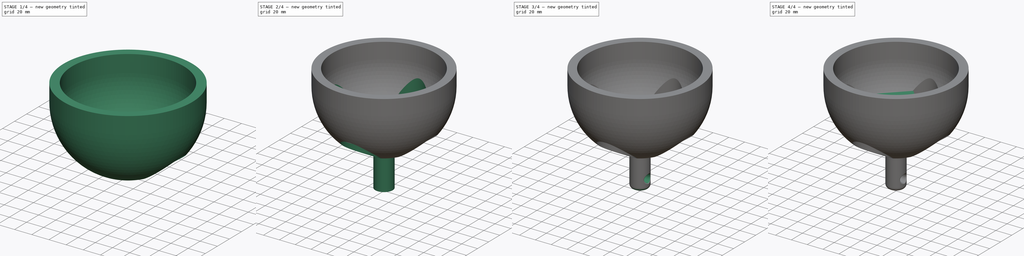
[diagram: build sequence overview — one tinted view per stage of 4, left to right]
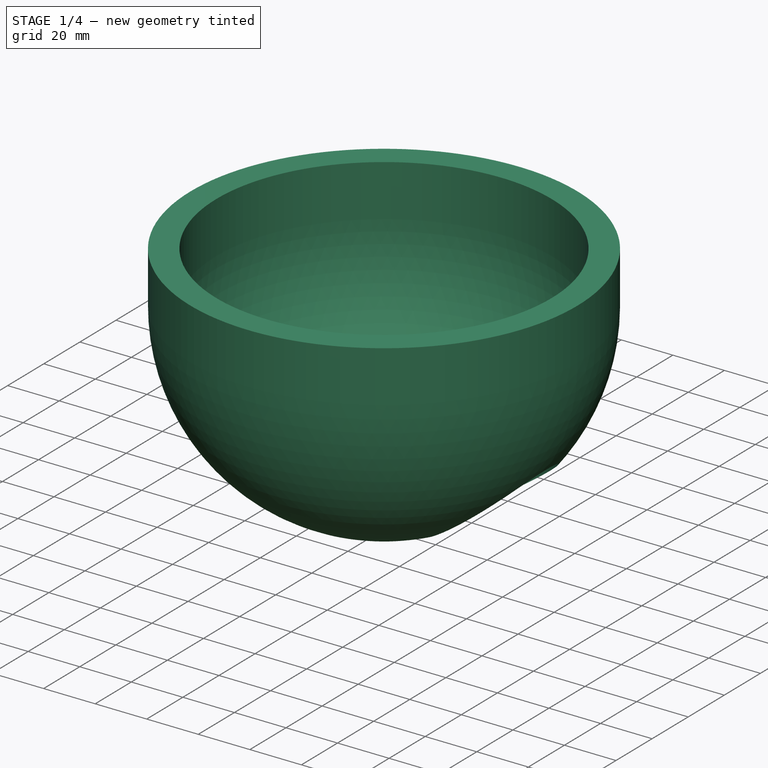
[diagram: stage 1 of 4 — iso view after this stage's code; geometry added in this stage tinted green]
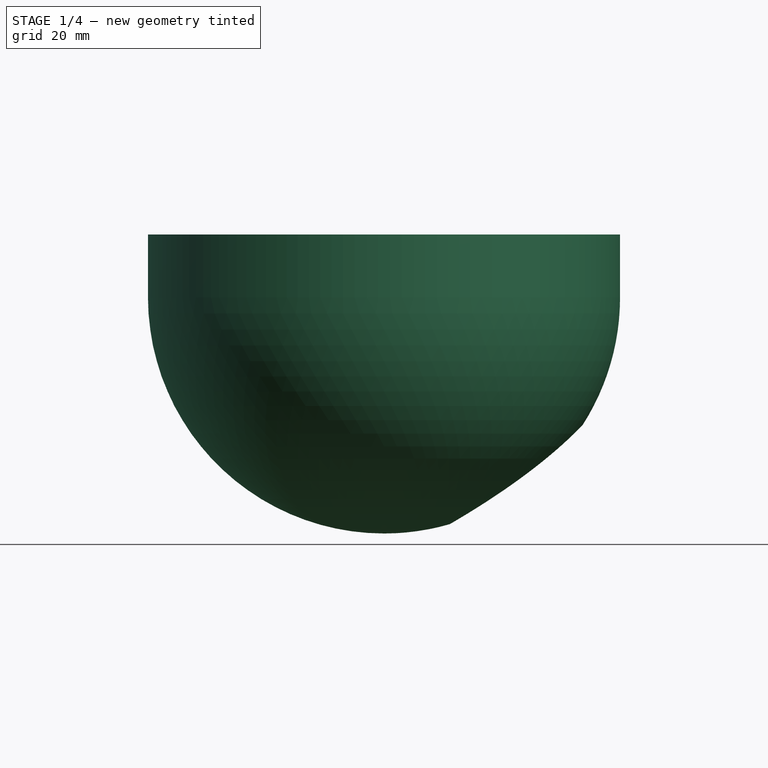
[diagram: stage 1 of 4 — front view after this stage's code; geometry added in this stage tinted green]
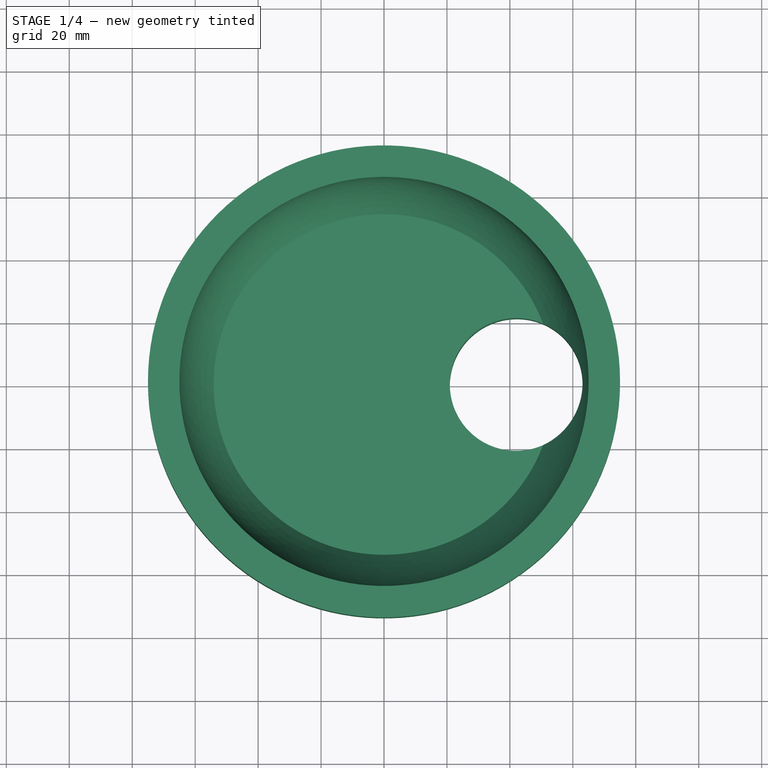
[diagram: stage 1 of 4 — top view after this stage's code; geometry added in this stage tinted green]
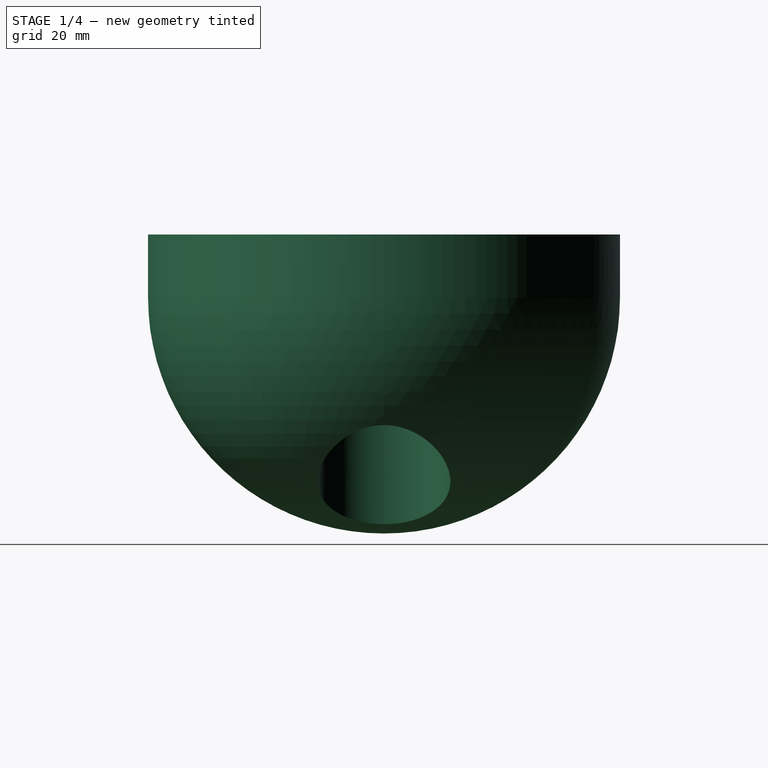
[diagram: stage 1 of 4 — right view after this stage's code; geometry added in this stage tinted green]
FCSTD DOCUMENT  (FreeCAD 0.19R24291 (Git))
Label: Buoy3DBase
License: All rights reserved
LicenseURL: http://en.wikipedia.org/wiki/All_rights_reserved
objects: Sketcher::SketchObject×6, PartDesign::Pad×3, PartDesign::Fillet×3, PartDesign::Pocket×2, PartDesign::Revolution×1, PartDesign::PolarPattern×1, PartDesign::Body×1, TechDraw::DrawSVGTemplate×1, TechDraw::DrawViewPart×1, TechDraw::DrawPage×1
note: 26 computed .brp shape members not serialized (recipe doc carries the construction recipe); baked Part::Feature solids carry a one-line shape summary decoded from their .brp

FEATURE [Sketcher::SketchObject] Sketch
  FullyConstrained = false
  MapMode = 5
  Placement = pos=(0,0,0) rot=(1,0,0;1.5708rad)
  Support = -> [XZ_Plane]
  sketch-geometry (7):
    g0: ArcOfCircle CenterX=0 CenterY=0 CenterZ=0 NormalX=0 NormalY=0 NormalZ=1 AngleXU=0 Radius=65 StartAngle=5.69621 EndAngle=6.28319
    g1: ArcOfCircle CenterX=0 CenterY=0 CenterZ=0 NormalX=0 NormalY=0 NormalZ=1 AngleXU=0 Radius=75 StartAngle=4.71239 EndAngle=6.28319
    g2: LineSegment StartX=65 StartY=-1.59e-14 StartZ=0 EndX=65 EndY=20 EndZ=0
    g3: LineSegment StartX=-1.38e-14 StartY=-75 StartZ=0 EndX=-1.38e-14 EndY=-36 EndZ=0
    g4: LineSegment StartX=-1.38e-14 StartY=-36 StartZ=0 EndX=54.1202 EndY=-36 EndZ=0
    g5: LineSegment StartX=75 StartY=20 StartZ=0 EndX=65 EndY=20 EndZ=0
    g6: LineSegment StartX=75 StartY=-1.84e-14 StartZ=0 EndX=75 EndY=20 EndZ=0
  constraints (20):
    c: Coincident(g0,g-1)
    c: PointOnObject(g0,g-1)
    c: Coincident(g1,g0)
    c: PointOnObject(g1,g-1)
    c: PointOnObject(g1,g-2)
    c: Coincident(g2,g0)
    c: Vertical(g2)
    c: Radius(g1) = 75
    c: DistanceY(g2,g2) = 20
    c: Coincident(g3,g4)
    c: Horizontal(g4)
    c: Coincident(g0,g4)
    c: DistanceY(g3,g0) = 36
    c: Coincident(g3,g1)
    c: Vertical(g3)
    c: Coincident(g5,g2)
    c: Horizontal(g5)
    c: Coincident(g6,g1)
    c: Vertical(g6)
    c: Coincident(g5,g6)
FEATURE [PartDesign::Revolution] Revolution
  Angle = 360
  Axis = (0,-2e-16,1)
  Base = (0,0,0)
  Placement = pos=(0,0,0) rot=(1,0,0;1.5708rad)
  Profile = -> Sketch
  ReferenceAxis = -> Sketch [V_Axis]
  Reversed = true
FEATURE [Sketcher::SketchObject] Sketch001
  FullyConstrained = true
  MapMode = 5
  Support = -> [XY_Plane]
  sketch-geometry (1):
    g0: Circle CenterX=42 CenterY=0 CenterZ=0 NormalX=0 NormalY=0 NormalZ=1 AngleXU=0 Radius=21.082
  constraints (3):
    c: PointOnObject(g0,g-1)
    c: DistanceX(g-1,g0) = 42
    c: Radius(g0) = 21.082
FEATURE [PartDesign::Pocket] Pocket
  BaseFeature = -> Revolution
  Length = 5
  Length2 = 100
  Placement = pos=(0,0,0) rot=(1,0,0;1.5708rad)
  Profile = -> Sketch001
  Type = 1
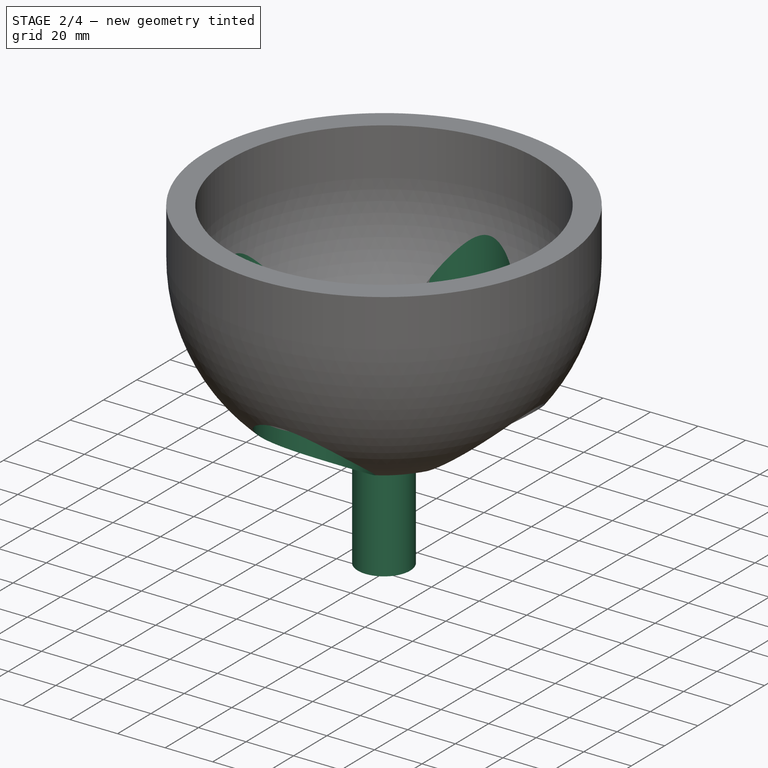
[diagram: stage 2 of 4 — iso view after this stage's code; geometry added in this stage tinted green]
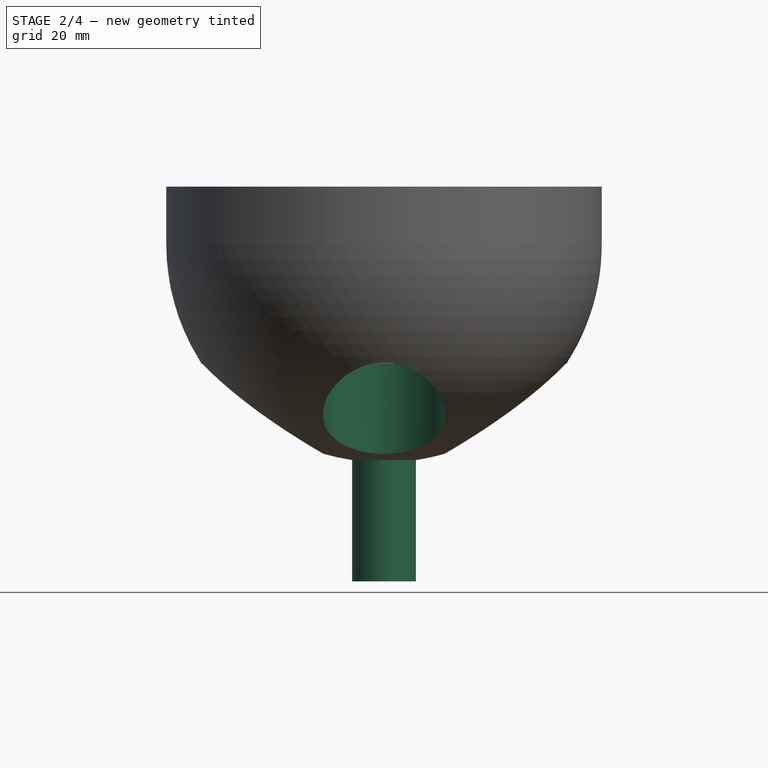
[diagram: stage 2 of 4 — front view after this stage's code; geometry added in this stage tinted green]
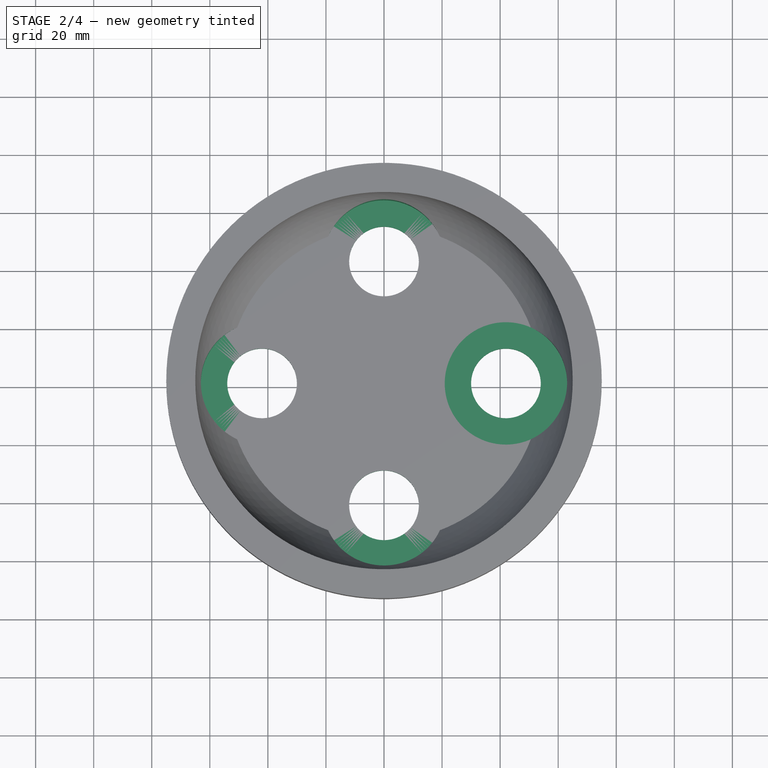
[diagram: stage 2 of 4 — top view after this stage's code; geometry added in this stage tinted green]
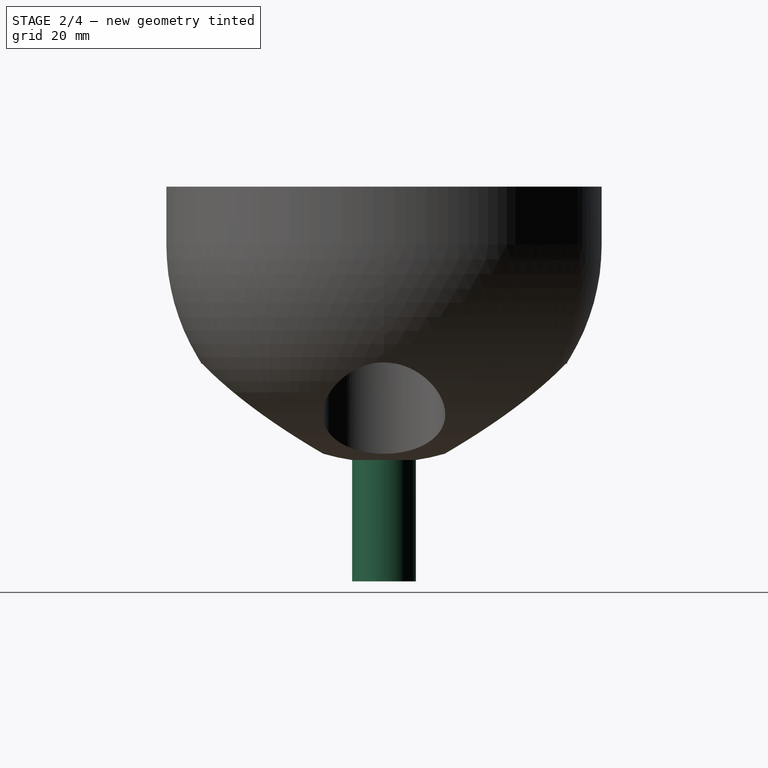
[diagram: stage 2 of 4 — right view after this stage's code; geometry added in this stage tinted green]
FEATURE [PartDesign::PolarPattern] PolarPattern
  Angle = 360
  Axis = -> Sketch001 [N_Axis]
  BaseFeature = -> Pocket
  Occurrences = 4
  Originals = -> [Pocket]
  Placement = pos=(0,0,0) rot=(1,0,0;1.5708rad)
FEATURE [Sketcher::SketchObject] Sketch002
  FullyConstrained = true
  MapMode = 5
  Placement = pos=(0,-8e-15,-36) rot=(0,0,1;3.14159rad)
  Support = -> [PolarPattern]
  sketch-geometry (8):
    g0: Circle CenterX=0 CenterY=-42 CenterZ=0 NormalX=0 NormalY=0 NormalZ=1 AngleXU=0 Radius=12
    g1: Circle CenterX=42 CenterY=0 CenterZ=0 NormalX=0 NormalY=0 NormalZ=1 AngleXU=0 Radius=12
    g2: Circle CenterX=-42 CenterY=0 CenterZ=0 NormalX=0 NormalY=0 NormalZ=1 AngleXU=0 Radius=12
    g3: Circle CenterX=0 CenterY=42 CenterZ=0 NormalX=0 NormalY=0 NormalZ=1 AngleXU=0 Radius=12
    g4: Circle CenterX=42 CenterY=0 CenterZ=0 NormalX=0 NormalY=0 NormalZ=1 AngleXU=0 Radius=21.082
    g5: Circle CenterX=0 CenterY=-42 CenterZ=0 NormalX=0 NormalY=0 NormalZ=1 AngleXU=0 Radius=21.082
    g6: Circle CenterX=-42 CenterY=0 CenterZ=0 NormalX=0 NormalY=0 NormalZ=1 AngleXU=0 Radius=21.082
    g7: Circle CenterX=0 CenterY=42 CenterZ=0 NormalX=0 NormalY=0 NormalZ=1 AngleXU=0 Radius=21.082
  constraints (20):
    c: PointOnObject(g0,g-2)
    c: PointOnObject(g1,g-1)
    c: PointOnObject(g3,g-2)
    c: DistanceX(g-1,g1) = 42
    c: DistanceX(g2,g-1) = 42
    c: PointOnObject(g2,g-1)
    c: DistanceY(g-1,g3) = 42
    c: DistanceY(g0,g-1) = 42
    c: Radius(g2) = 12
    c: Equal(g2,g3)
    c: Equal(g2,g1)
    c: Equal(g2,g0)
    c: Coincident(g4,g1)
    c: Coincident(g6,g2)
    c: Radius(g4) = 21.082
    c: Equal(g4,g5)
    c: Equal(g4,g6)
    c: Equal(g4,g7)
    c: Coincident(g5,g0)
    c: Coincident(g3,g7)
FEATURE [PartDesign::Pad] Pad
  BaseFeature = -> PolarPattern
  Direction = (1,1,1)
  Length = 5
  Length2 = 100
  Placement = pos=(0,0,0) rot=(1,0,0;1.5708rad)
  Profile = -> Sketch002
  Reversed = true
  Type = 0
FEATURE [Sketcher::SketchObject] Sketch003
  FullyConstrained = true
  MapMode = 5
  Placement = pos=(0,-8e-15,-36) rot=(0,0,1;3.14159rad)
  Support = -> [Pad]
  sketch-geometry (1):
    g0: Circle CenterX=0 CenterY=0 CenterZ=0 NormalX=0 NormalY=0 NormalZ=1 AngleXU=0 Radius=11
  constraints (2):
    c: Coincident(g0,g-1)
    c: Radius(g0) = 11
FEATURE [PartDesign::Pad] Pad001
  BaseFeature = -> Pad
  Direction = (1,1,1)
  Length = 80
  Length2 = 100
  Placement = pos=(0,0,0) rot=(1,0,0;1.5708rad)
  Profile = -> Sketch003
  Reversed = true
  Type = 0
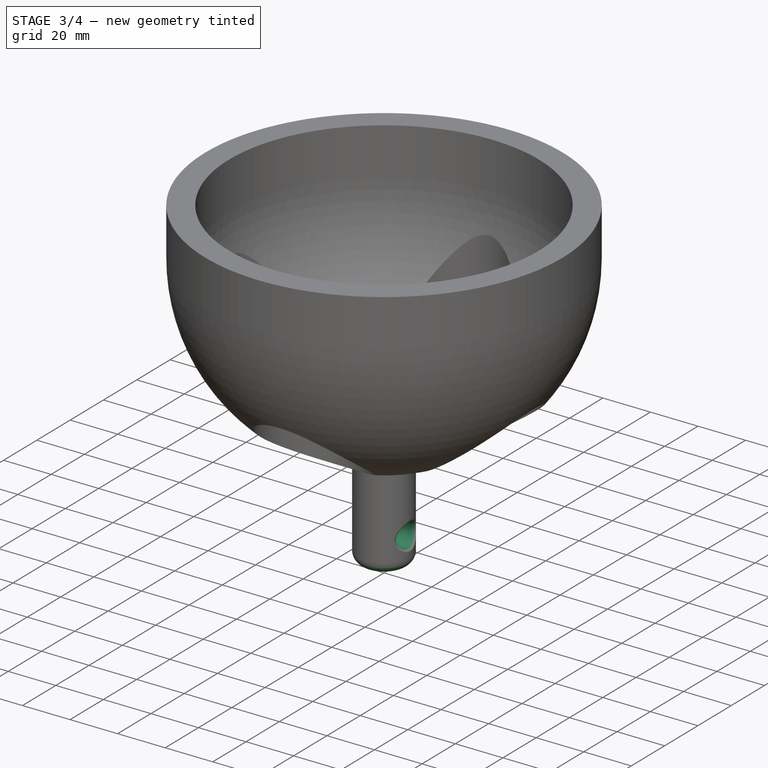
[diagram: stage 3 of 4 — iso view after this stage's code; geometry added in this stage tinted green]
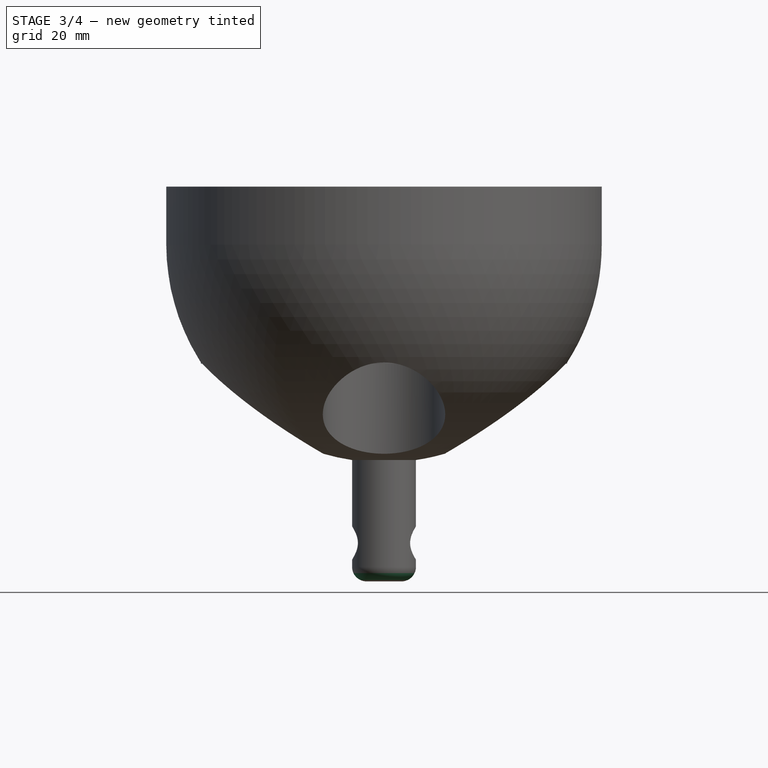
[diagram: stage 3 of 4 — front view after this stage's code; geometry added in this stage tinted green]
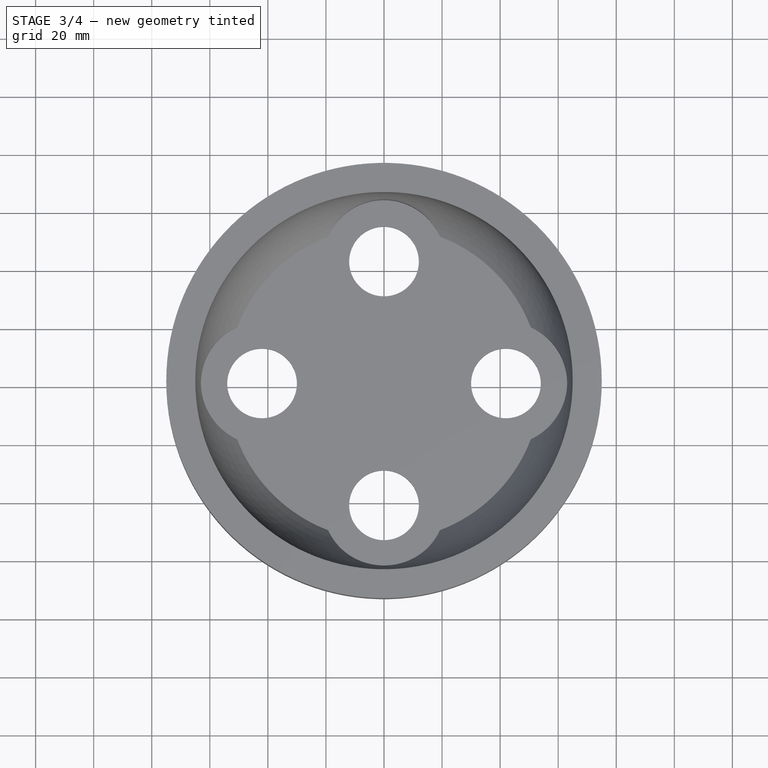
[diagram: stage 3 of 4 — top view after this stage's code; geometry added in this stage tinted green]
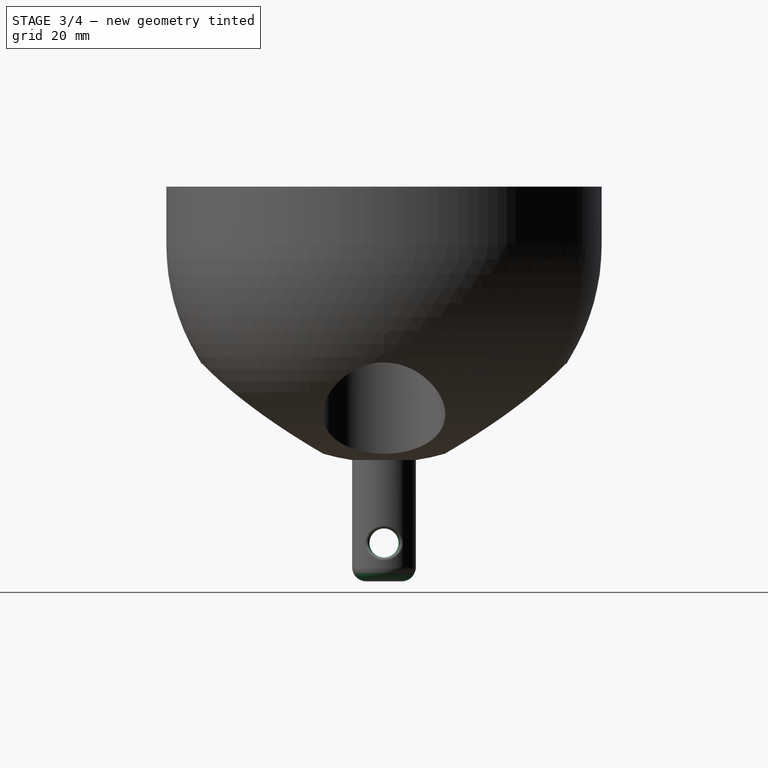
[diagram: stage 3 of 4 — right view after this stage's code; geometry added in this stage tinted green]
FEATURE [Sketcher::SketchObject] Sketch004
  FullyConstrained = false
  MapMode = 5
  Placement = pos=(0,0,0) rot=(0.57735,0.57735,0.57735;2.0944rad)
  Support = -> [YZ_Plane]
  sketch-geometry (1):
    g0: Circle CenterX=0 CenterY=-102.755 CenterZ=0 NormalX=0 NormalY=0 NormalZ=1 AngleXU=0 Radius=5
  constraints (2):
    c: PointOnObject(g0,g-2)
    c: Radius(g0) = 5
FEATURE [PartDesign::Pocket] Pocket001
  BaseFeature = -> Pad001
  Length = 5
  Length2 = 100
  Midplane = true
  Placement = pos=(0,0,0) rot=(1,0,0;1.5708rad)
  Profile = -> Sketch004
  Type = 1
FEATURE [PartDesign::Fillet] Fillet
  Base = -> Pocket001 [Edge86]
  BaseFeature = -> Pocket001
  Placement = pos=(0,0,0) rot=(1,0,0;1.5708rad)
  Radius = 5
  SupportTransform = false
FEATURE [PartDesign::Fillet] Fillet001
  Base = -> Fillet [Edge5,Edge9]
  BaseFeature = -> Fillet
  Placement = pos=(0,0,0) rot=(1,0,0;1.5708rad)
  Radius = 1
  SupportTransform = false
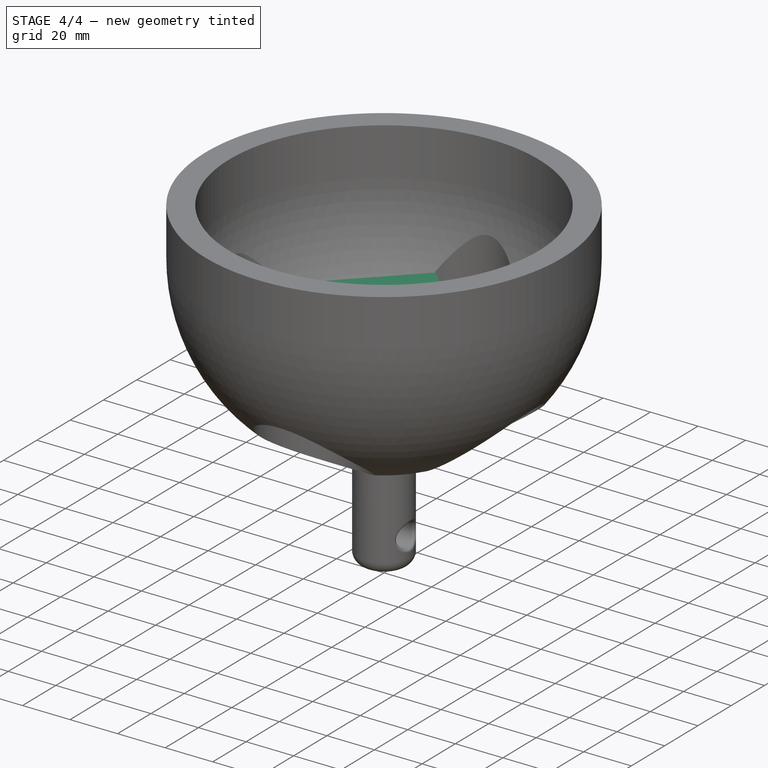
[diagram: stage 4 of 4 — iso view after this stage's code; geometry added in this stage tinted green]
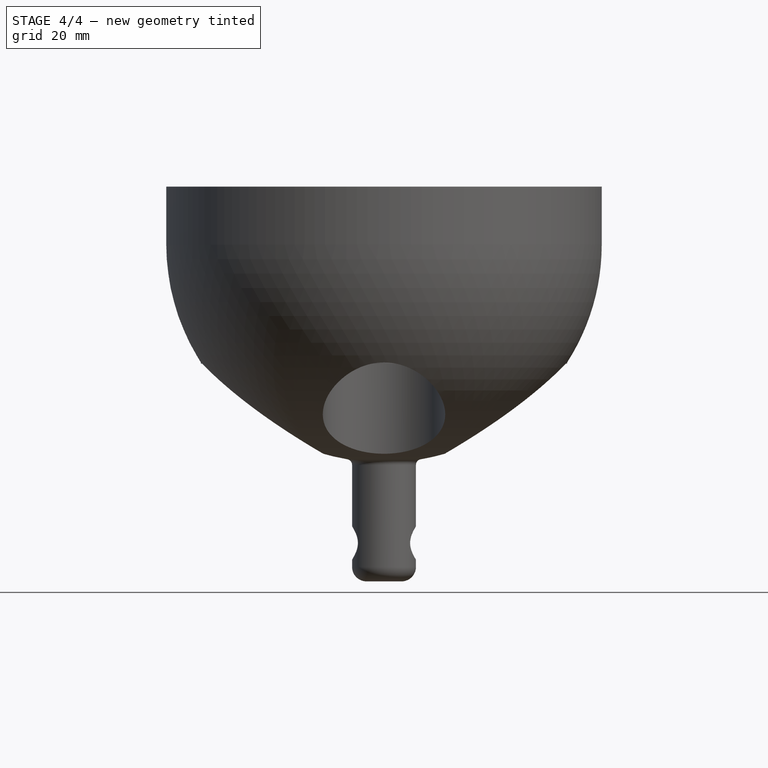
[diagram: stage 4 of 4 — front view after this stage's code; geometry added in this stage tinted green]
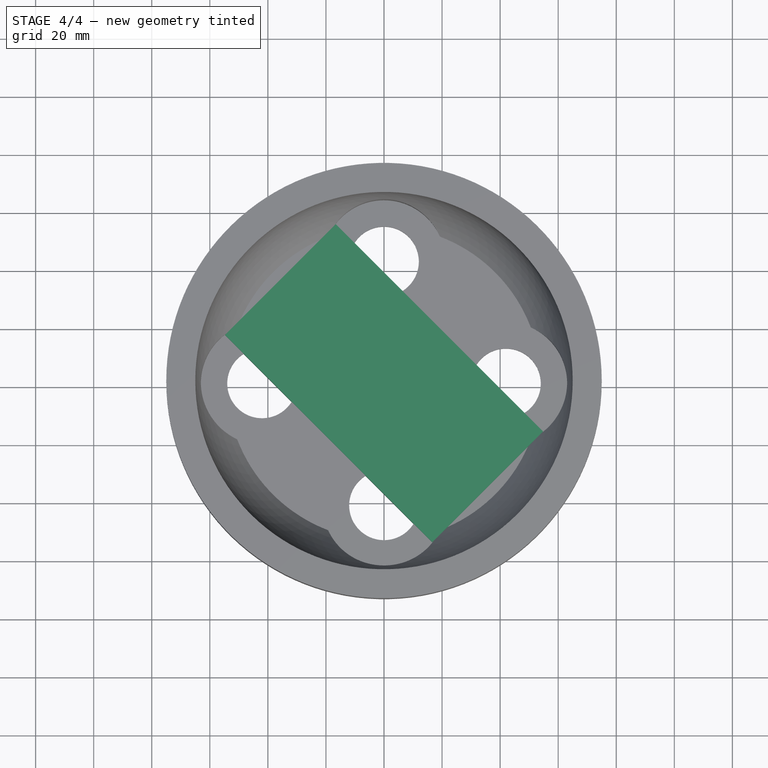
[diagram: stage 4 of 4 — top view after this stage's code; geometry added in this stage tinted green]
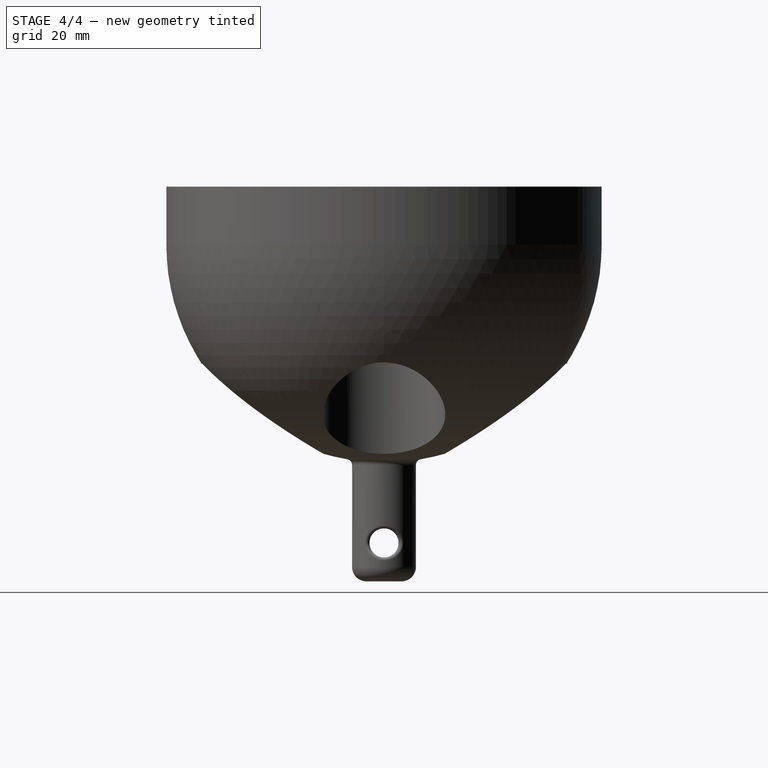
[diagram: stage 4 of 4 — right view after this stage's code; geometry added in this stage tinted green]
FEATURE [PartDesign::Fillet] Fillet002
  Base = -> Fillet001 [Edge8]
  BaseFeature = -> Fillet001
  Placement = pos=(0,0,0) rot=(1,0,0;1.5708rad)
  Radius = 2
  SupportTransform = false
FEATURE [Sketcher::SketchObject] Sketch005
  FullyConstrained = true
  MapMode = 5
  Placement = pos=(0,-8e-15,-36) rot=(0,0,1;3.14159rad)
  Support = -> [Fillet002]
  sketch-geometry (4):
    g0: LineSegment StartX=-54.8008 StartY=16.617 StartZ=0 EndX=16.617 EndY=-54.8008 EndZ=0
    g1: LineSegment StartX=16.617 StartY=-54.8008 StartZ=0 EndX=54.8008 EndY=-16.617 EndZ=0
    g2: LineSegment StartX=54.8008 StartY=-16.617 StartZ=0 EndX=-16.617 EndY=54.8008 EndZ=0
    g3: LineSegment StartX=-16.617 StartY=54.8008 StartZ=0 EndX=-54.8008 EndY=16.617 EndZ=0
  constraints (11):
    c: Coincident(g0,g1)
    c: Coincident(g1,g2)
    c: Coincident(g2,g3)
    c: Coincident(g3,g0)
    c: Angle(g2,g1) = 1.5708
    c: Angle(g3,g2) = 1.5708
    c: Angle(g0,g3) = 1.5708
    c: Distance(g3) = 54
    c: Distance(g2) = 101
    c: Angle(g-2,g0) = 0.785398
    c: Symmetric(g0,g1,g-1)
FEATURE [PartDesign::Pad] Pad002
  BaseFeature = -> Fillet002
  Direction = (1,1,1)
  Length = 5
  Length2 = 5
  Placement = pos=(0,0,0) rot=(1,0,0;1.5708rad)
  Profile = -> Sketch005
  Type = 4
FEATURE [PartDesign::Body] Body
  Group = -> [Sketch,Revolution,Sketch001,Pocket,PolarPattern,Sketch002,Pad,Sketch003,Pad001,Sketch004,Pocket001,Fillet,Fillet001,Fillet002,Sketch005,Pad002]
  Origin = -> Origin
  Tip = -> Pad002
FEATURE [TechDraw::DrawSVGTemplate] Template
  EditableTexts = Designed_by_Name=Designed by Name; Drawing_number=Drawing number; FC-Date=Date; FC-SC=Scale; FC-SH=Sheet; FC-Title=Title; Subtitle=Subtitle; Weight=Weight
  Height = 210
  Orientation = 1
  Width = 297
FEATURE [TechDraw::DrawViewPart] View
  CoarseView = false
  Direction = (1,0,0)
  Focus = 100
  HardHidden = false
  IsoCount = 0
  IsoHidden = false
  IsoVisible = false
  LockPosition = false
  Perspective = false
  Rotation = 0
  ScaleType = 0
  SeamHidden = false
  SeamVisible = true
  SmoothHidden = false
  SmoothVisible = true
  Source = -> [Pad002]
  X = 99.1141
  XDirection = (0,1,0)
  Y = 119.882
FEATURE [TechDraw::DrawPage] Page
  KeepUpdated = true
  NextBalloonIndex = 1
  ProjectionType = 0
  Template = -> Template
  Views = -> [View]
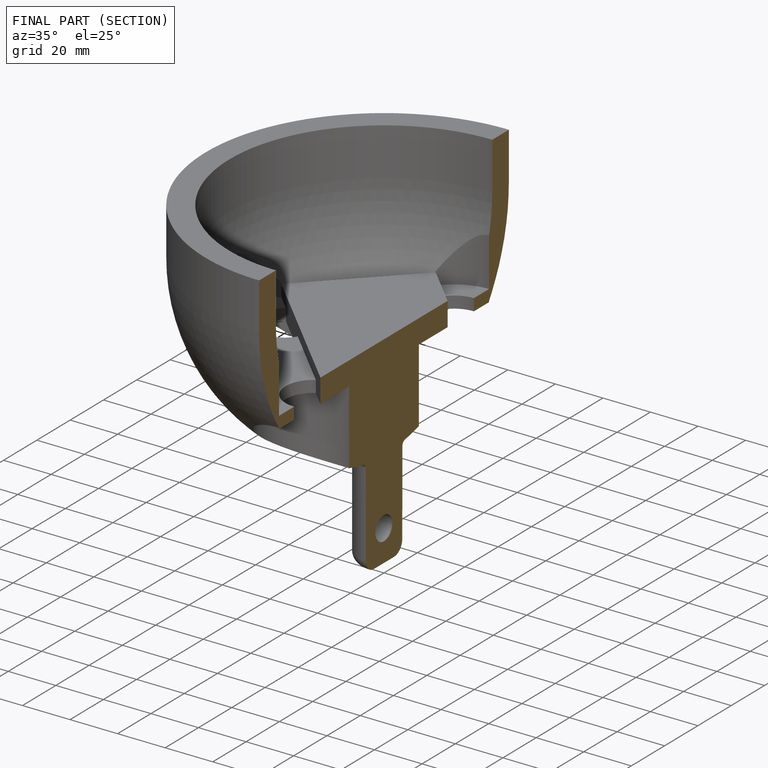
[diagram: finished part — half-section view (interior)]
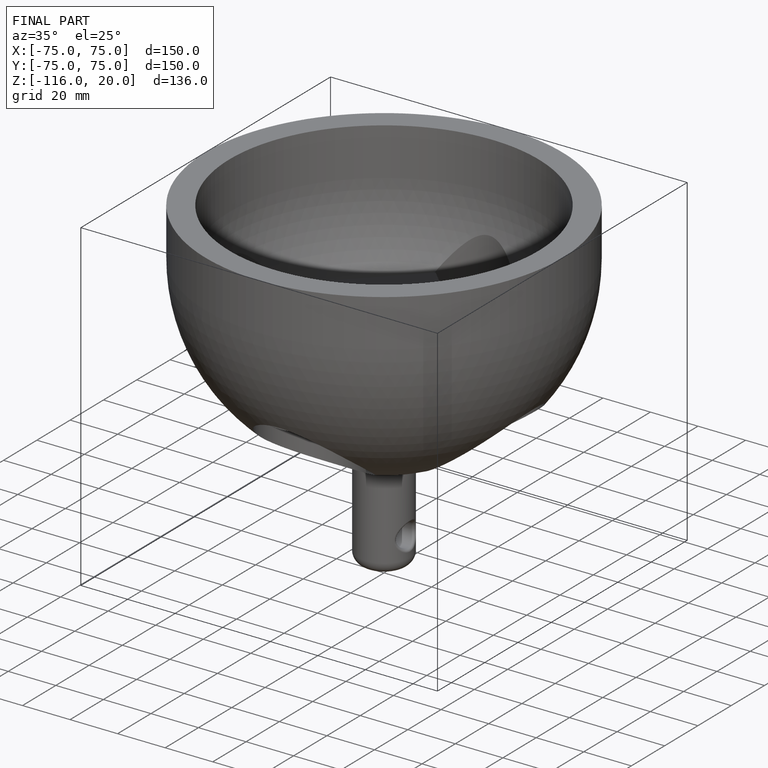
[diagram: finished part — iso view with bounding-box wireframe]
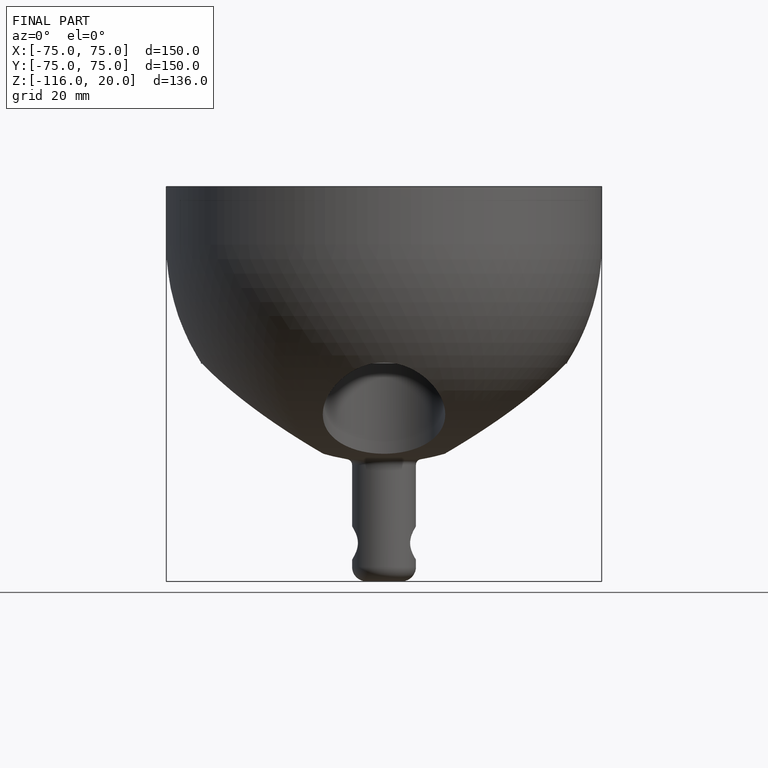
[diagram: finished part — front view with bounding-box wireframe]
